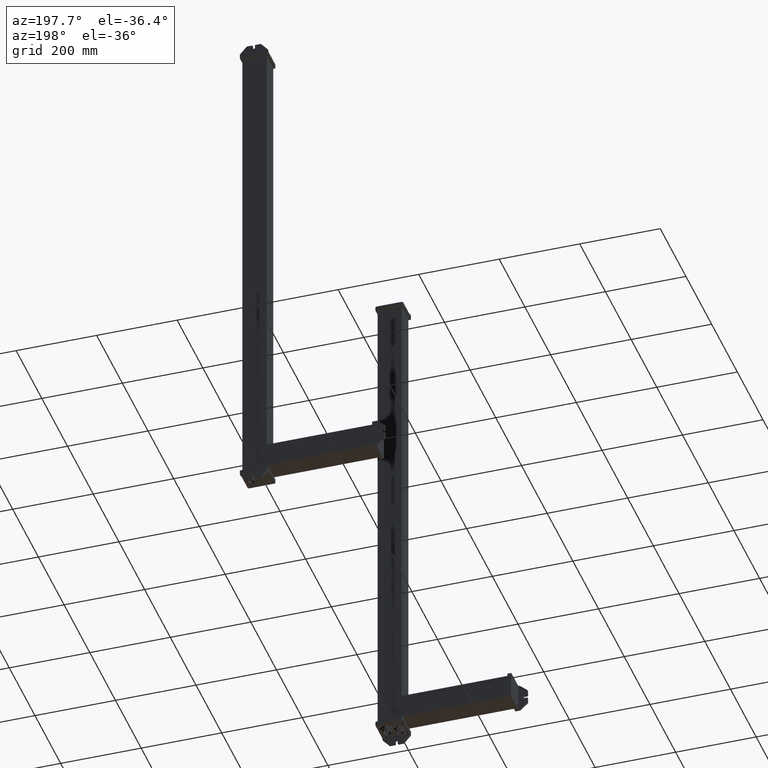
[diagram: clean part render]
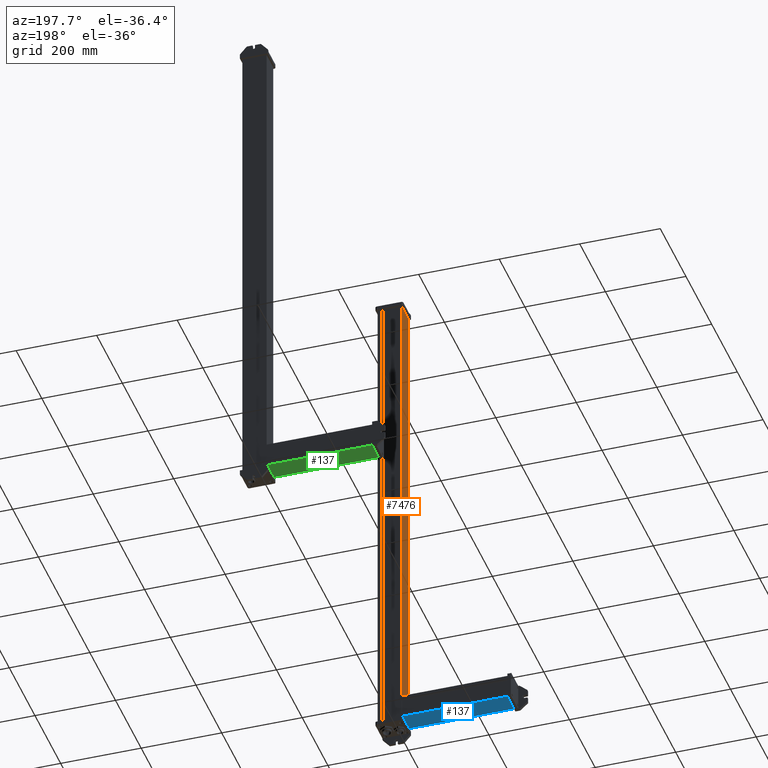
[diagram: same view with three faces highlighted in distinct colors, each labeled with its STEP entity id]
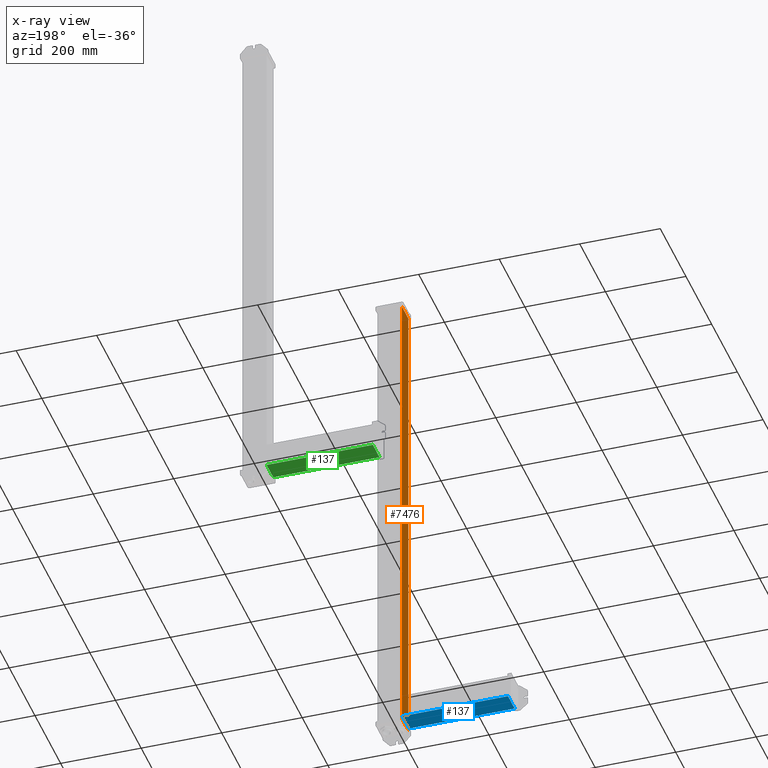
[diagram: x-ray of the same camera — body ghosted, the three highlighted faces saturated]
A machine part, auxiliary view with three faces highlighted in distinct colors.
The next image is the same camera in x-ray (body ghosted, the three faces saturated) — at least one of them is partly hidden behind the body in this view.
Their STEP definitions:

[orange] entity #7476 — the highlighted planar face has unit normal (-1, 0, 0).
#7239=CARTESIAN_POINT('Line Origine',(0.,0.,605.5)) ;
#7243=CARTESIAN_POINT('Vertex',(0.,0.,0.)) ;
#7245=CARTESIAN_POINT('Vertex',(0.,0.,1211.)) ;
#7433=CARTESIAN_POINT('Vertex',(3.5527136788E-015,52.,0.)) ;
#7436=CARTESIAN_POINT('Line Origine',(7.1054273576E-015,52.,605.5)) ;
#7440=CARTESIAN_POINT('Vertex',(3.5527136788E-015,52.,1211.)) ;
#7455=CARTESIAN_POINT('Axis2P3D Location',(0.,52.,0.)) ;
#7460=CARTESIAN_POINT('Line Origine',(0.,26.,0.)) ;
#7465=CARTESIAN_POINT('Line Origine',(0.,26.,1211.)) ;
#7240=DIRECTION('Vector Direction',(0.,0.,1.)) ;
#7437=DIRECTION('Vector Direction',(0.,0.,1.)) ;
#7456=DIRECTION('Axis2P3D Direction',(-1.,0.,0.)) ;
#7457=DIRECTION('Axis2P3D XDirection',(0.,-1.,0.)) ;
#7461=DIRECTION('Vector Direction',(0.,-1.,0.)) ;
#7466=DIRECTION('Vector Direction',(0.,-1.,0.)) ;
#7458=AXIS2_PLACEMENT_3D('Plane Axis2P3D',#7455,#7456,#7457) ;
#7471=ORIENTED_EDGE('',*,*,#7442,.F.) ;
#7472=ORIENTED_EDGE('',*,*,#7464,.T.) ;
#7473=ORIENTED_EDGE('',*,*,#7247,.T.) ;
#7474=ORIENTED_EDGE('',*,*,#7469,.F.) ;
#7241=VECTOR('Line Direction',#7240,1.) ;
#7438=VECTOR('Line Direction',#7437,1.) ;
#7462=VECTOR('Line Direction',#7461,1.) ;
#7467=VECTOR('Line Direction',#7466,1.) ;
#7476=ADVANCED_FACE('PartBody',(#7475),#7459,.T.) ;
#7247=EDGE_CURVE('',#7244,#7246,#7242,.T.) ;
#7442=EDGE_CURVE('',#7434,#7441,#7439,.T.) ;
#7464=EDGE_CURVE('',#7434,#7244,#7463,.T.) ;
#7469=EDGE_CURVE('',#7441,#7246,#7468,.T.) ;
#7470=EDGE_LOOP('',(#7471,#7472,#7473,#7474)) ;
#7475=FACE_OUTER_BOUND('',#7470,.T.) ;
#7242=LINE('Line',#7239,#7241) ;
#7439=LINE('Line',#7436,#7438) ;
#7463=LINE('Line',#7460,#7462) ;
#7468=LINE('Line',#7465,#7467) ;
#7459=PLANE('Plane',#7458) ;
#7244=VERTEX_POINT('',#7243) ;
#7246=VERTEX_POINT('',#7245) ;
#7434=VERTEX_POINT('',#7433) ;
#7441=VERTEX_POINT('',#7440) ;

[blue] entity #137 — the highlighted planar face has unit normal (-0, -0, -1).
#85=CARTESIAN_POINT('Vertex',(60.,0.,0.)) ;
#88=CARTESIAN_POINT('Line Origine',(60.,0.,132.)) ;
#92=CARTESIAN_POINT('Vertex',(60.,0.,264.)) ;
#107=CARTESIAN_POINT('Axis2P3D Location',(60.,4.1274730146E-015,0.)) ;
#112=CARTESIAN_POINT('Line Origine',(60.,26.,0.)) ;
#116=CARTESIAN_POINT('Vertex',(60.,52.,0.)) ;
#119=CARTESIAN_POINT('Line Origine',(60.,52.,132.)) ;
#123=CARTESIAN_POINT('Vertex',(60.,52.,264.)) ;
#126=CARTESIAN_POINT('Line Origine',(60.,26.,264.)) ;
#89=DIRECTION('Vector Direction',(0.,0.,1.)) ;
#108=DIRECTION('Axis2P3D Direction',(1.,0.,0.)) ;
#109=DIRECTION('Axis2P3D XDirection',(0.,1.,0.)) ;
#113=DIRECTION('Vector Direction',(0.,1.,0.)) ;
#120=DIRECTION('Vector Direction',(0.,0.,1.)) ;
#127=DIRECTION('Vector Direction',(0.,1.,0.)) ;
#110=AXIS2_PLACEMENT_3D('Plane Axis2P3D',#107,#108,#109) ;
#132=ORIENTED_EDGE('',*,*,#94,.F.) ;
#133=ORIENTED_EDGE('',*,*,#118,.T.) ;
#134=ORIENTED_EDGE('',*,*,#125,.T.) ;
#135=ORIENTED_EDGE('',*,*,#130,.F.) ;
#90=VECTOR('Line Direction',#89,1.) ;
#114=VECTOR('Line Direction',#113,1.) ;
#121=VECTOR('Line Direction',#120,1.) ;
#128=VECTOR('Line Direction',#127,1.) ;
#137=ADVANCED_FACE('PartBody',(#136),#111,.T.) ;
#94=EDGE_CURVE('',#86,#93,#91,.T.) ;
#118=EDGE_CURVE('',#86,#117,#115,.T.) ;
#125=EDGE_CURVE('',#117,#124,#122,.T.) ;
#130=EDGE_CURVE('',#93,#124,#129,.T.) ;
#131=EDGE_LOOP('',(#132,#133,#134,#135)) ;
#136=FACE_OUTER_BOUND('',#131,.T.) ;
#91=LINE('Line',#88,#90) ;
#115=LINE('Line',#112,#114) ;
#122=LINE('Line',#119,#121) ;
#129=LINE('Line',#126,#128) ;
#111=PLANE('Plane',#110) ;
#86=VERTEX_POINT('',#85) ;
#93=VERTEX_POINT('',#92) ;
#117=VERTEX_POINT('',#116) ;
#124=VERTEX_POINT('',#123) ;

[green] entity #137 — the highlighted planar face has unit normal (0, -0, -1).
#85=CARTESIAN_POINT('Vertex',(60.,0.,0.)) ;
#88=CARTESIAN_POINT('Line Origine',(60.,0.,132.)) ;
#92=CARTESIAN_POINT('Vertex',(60.,0.,264.)) ;
#107=CARTESIAN_POINT('Axis2P3D Location',(60.,4.1274730146E-015,0.)) ;
#112=CARTESIAN_POINT('Line Origine',(60.,26.,0.)) ;
#116=CARTESIAN_POINT('Vertex',(60.,52.,0.)) ;
#119=CARTESIAN_POINT('Line Origine',(60.,52.,132.)) ;
#123=CARTESIAN_POINT('Vertex',(60.,52.,264.)) ;
#126=CARTESIAN_POINT('Line Origine',(60.,26.,264.)) ;
#89=DIRECTION('Vector Direction',(0.,0.,1.)) ;
#108=DIRECTION('Axis2P3D Direction',(1.,0.,0.)) ;
#109=DIRECTION('Axis2P3D XDirection',(0.,1.,0.)) ;
#113=DIRECTION('Vector Direction',(0.,1.,0.)) ;
#120=DIRECTION('Vector Direction',(0.,0.,1.)) ;
#127=DIRECTION('Vector Direction',(0.,1.,0.)) ;
#110=AXIS2_PLACEMENT_3D('Plane Axis2P3D',#107,#108,#109) ;
#132=ORIENTED_EDGE('',*,*,#94,.F.) ;
#133=ORIENTED_EDGE('',*,*,#118,.T.) ;
#134=ORIENTED_EDGE('',*,*,#125,.T.) ;
#135=ORIENTED_EDGE('',*,*,#130,.F.) ;
#90=VECTOR('Line Direction',#89,1.) ;
#114=VECTOR('Line Direction',#113,1.) ;
#121=VECTOR('Line Direction',#120,1.) ;
#128=VECTOR('Line Direction',#127,1.) ;
#137=ADVANCED_FACE('PartBody',(#136),#111,.T.) ;
#94=EDGE_CURVE('',#86,#93,#91,.T.) ;
#118=EDGE_CURVE('',#86,#117,#115,.T.) ;
#125=EDGE_CURVE('',#117,#124,#122,.T.) ;
#130=EDGE_CURVE('',#93,#124,#129,.T.) ;
#131=EDGE_LOOP('',(#132,#133,#134,#135)) ;
#136=FACE_OUTER_BOUND('',#131,.T.) ;
#91=LINE('Line',#88,#90) ;
#115=LINE('Line',#112,#114) ;
#122=LINE('Line',#119,#121) ;
#129=LINE('Line',#126,#128) ;
#111=PLANE('Plane',#110) ;
#86=VERTEX_POINT('',#85) ;
#93=VERTEX_POINT('',#92) ;
#117=VERTEX_POINT('',#116) ;
#124=VERTEX_POINT('',#123) ;